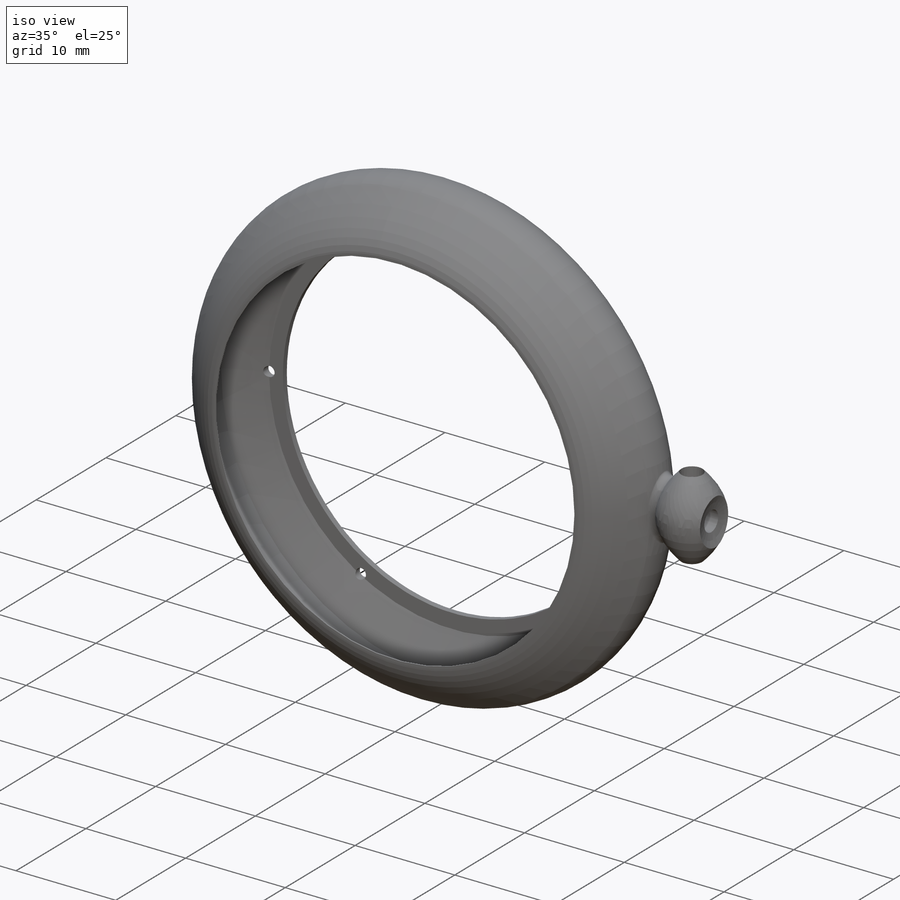
[diagram: iso view]
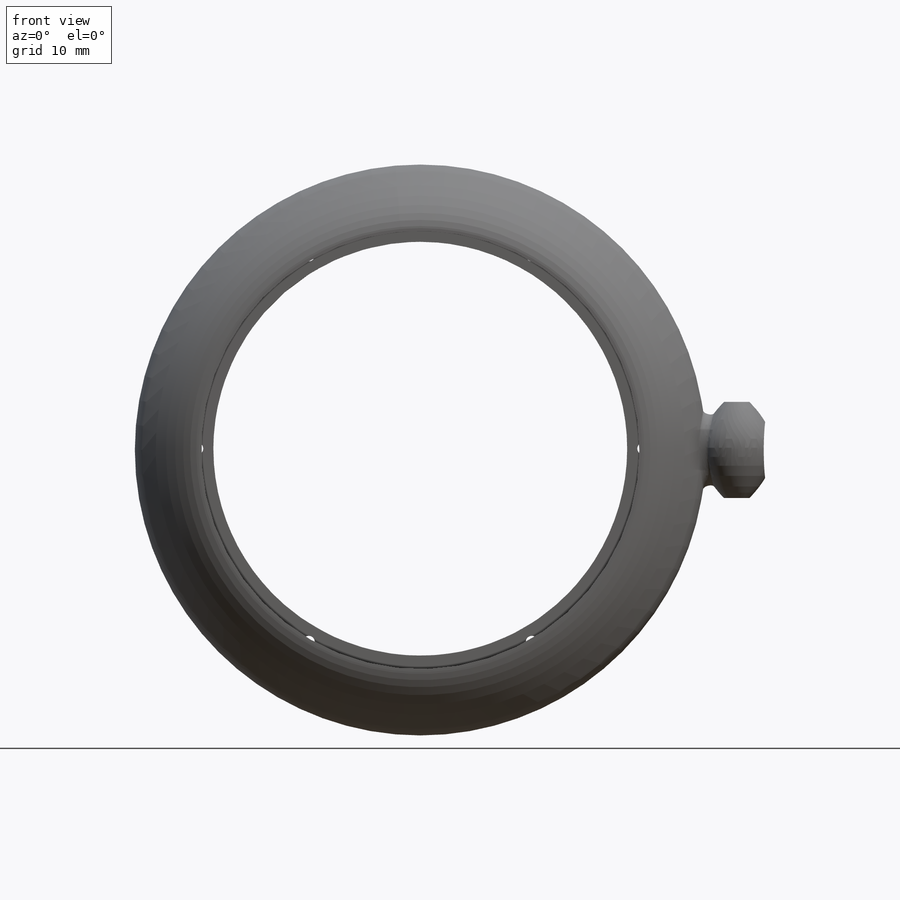
[diagram: front view]
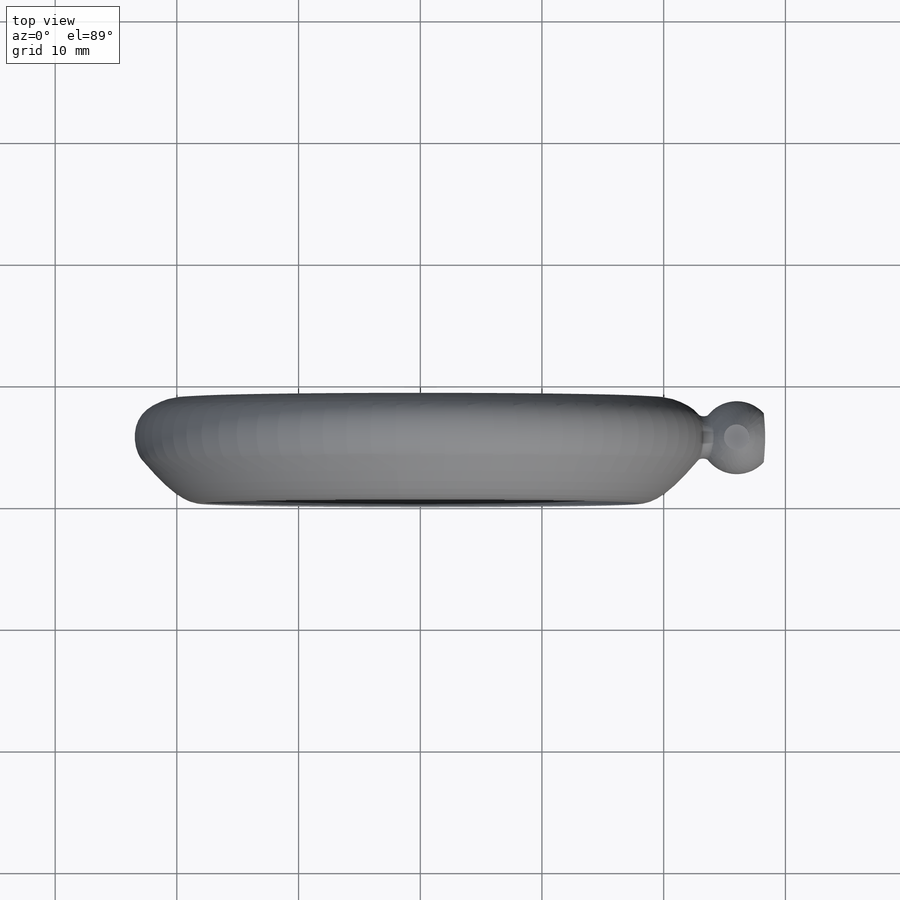
[diagram: top view]
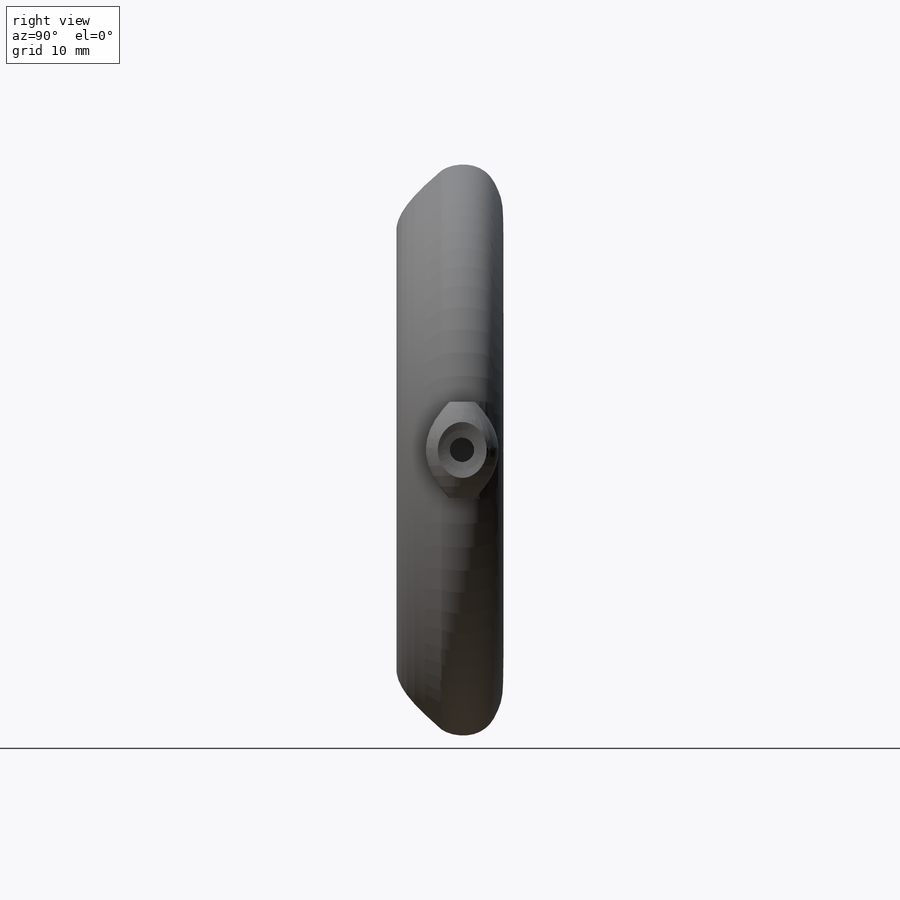
[diagram: right view]
SOLIDWORKS PART (.sldprt)
format: sldprt  version: not decoded by parser v0  size: 616,960 bytes
history: native  units: mm
features: sketch x20, plane x9, fillet x8, cut_extrude x6, extrude x2, material x1, revolve x1, cut_revolve x1 (+14 scaffold rows collapsed; 1 parser-record rows omitted)
feature tree (63):
  scaffold x14  (default folders/planes/origin — collapsed)
  material  "Matériau <non spécifié>"
  sketch  "Sketch1"  dims[c1.D1=9.0mm c1.D2=18.0mm c1.D3=4.5mm c1.D4=23.5mm c2.D1=0.1mm c2.D5=0.25mm c2.D6=19.0mm]
  revolve  "Revolve6"  Angle=360deg
  parser-record x1  (decoder bookkeeping rows leaked as tree rows — omitted from the tree; the rows remain in map.json)
  plane  "Plane1"  Offset=22.5mm
  plane  "Plane2"  Offset=1.5mm
  plane  "Plane3"  Offset=0.5mm
  plane  "Plane4"  Offset=0.7mm
  plane  "Plane5"  Offset=5.4mm
  sketch  "Sketch3"
  sketch  "Sketch4"  dims[D1=3.5mm]
  sketch  "Sketch5"  dims[D1=5.0mm]
  sketch  "Sketch6"
  sketch  "Sketch7"
  plane  "Plane6"  Offset=0.65mm
  sketch  "Sketch8"  dims[D1=3.0mm]
  plane  "Plane7"  Offset=4mm
  plane  "Plane8"  Offset=4mm
  sketch  "Sketch10"  dims[D1=6.0mm D2=26.0mm]
  sketch  "Sketch9"  dims[D1=2.0mm]
  sketch  "Sketch11"
  sketch  "Sketch12"  dims[D1=30.5mm D2=~2.617992mm D3=~4.044024mm]
  cut_revolve  "Cut-Revolve2"  Angle=360deg
  sketch  "Sketch15"  dims[D1=2.1mm]
  cut_extrude  "Cut-Extrude2"  Depth=10mm
  fillet  "Congé1"  Radius=0.5mm
  extrude  "Boss-Extrude1"  [1 undecoded]
  sketch  "Sketch15<2>"  dims[D1=6.0mm]
  sketch  "Sketch14"  dims[D1=2.0mm]
  cut_extrude  "Cut-Extrude1"  Depth=10mm
  sketch  "Sketch16"  dims[c1.D1=1.5mm c1.D2=1.0mm c1.D3=1.0mm c1.D4=~20.82213mm c1.D5=~20.82213mm c2.D3=~1.012366mm c2.D2=1.0mm]
  cut_extrude  "Cut-Extrude3"  Depth=3.5mm
  fillet  "Fillet3"  Radius=0.2mm
  fillet  "Fillet4"  Radius=0.1mm
  sketch  "Sketch17"  dims[D1=1.4mm D2=1.0mm D3=20.9mm D4=1.4mm]
  extrude  "Boss-Extrude2"  Depth=15mm
  fillet  "Fillet5"  Radius=0.2mm
  fillet  "Fillet6"  Radius=0.2mm
  fillet  "Fillet7"  Radius=0.1mm
  fillet  "Fillet8"  Radius=0.1mm
  sketch  "Sketch18"
  cut_extrude  "Cut-Extrude4"  Depth=5mm
  fillet  "Fillet9"  Radius=0.1mm
  plane  "Plan1"
  sketch  "Esquisse1"
  sketch  "Esquisse2"  dims[c1.D1=36.65mm c1.D2=18.325mm c2.D1=16.83mm]
  cut_extrude  "Enlèv. mat.-Extru.1"  Depth=3mm
  sketch  "Esquisse3"  dims[D1=~0.824046mm]
  cut_extrude  "Enlèv. mat.-Extru.2"  Depth=2mm
decode coverage: 31 of 38 modeling features carry decoded parameters
note: ~ marks probable driven/reference dimensions
note: 1 parameter value undecoded
note: suppression state not decoded; provenance and decode notes live in map.json
